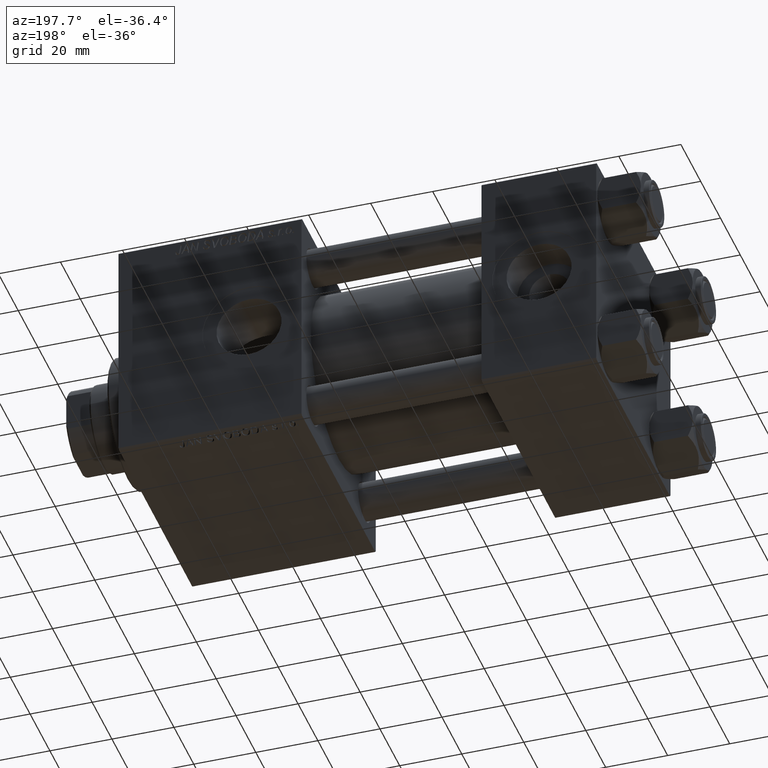
[diagram: clean part render]
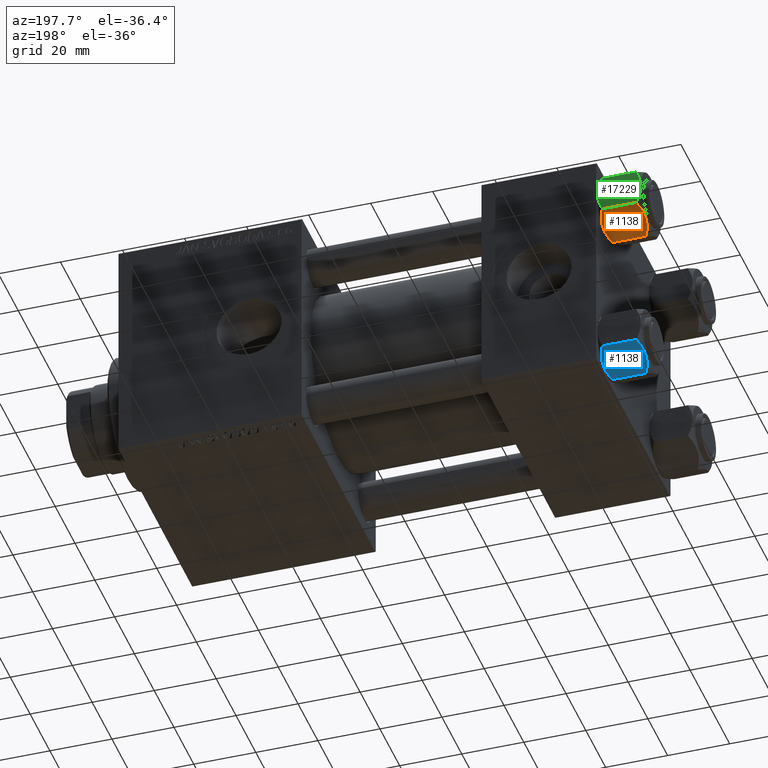
[diagram: same view with three faces highlighted in distinct colors, each labeled with its STEP entity id]
A machine part, auxiliary view with three faces highlighted in distinct colors.
Their STEP definitions:

[orange] entity #1138 — the highlighted planar face has unit normal (0, -0.5, 0.866).
#1138 = ADVANCED_FACE ( 'NONE', ( #26631 ), #42668, .F. ) ;
#2175 = DIRECTION ( 'NONE',  ( 0.8660254037844385966, -0.5000000000000002220, 0.000000000000000000 ) ) ;
#3727 = CARTESIAN_POINT ( 'NONE',  ( -9.227666995912096937, 4.143642311704127223, -13.96005881939308857 ) ) ;
#5527 = CARTESIAN_POINT ( 'NONE',  ( -7.713000053756302599, 6.767122412062954062, -13.84547602999601601 ) ) ;
#6054 = CARTESIAN_POINT ( 'NONE',  ( -8.209704053696567527, 5.906805847843725310, -14.00000000000000533 ) ) ;
#6341 = DIRECTION ( 'NONE',  ( -0.000000000000000000, -0.000000000000000000, 1.000000000000000000 ) ) ;
#6635 = CARTESIAN_POINT ( 'NONE',  ( -11.61999999999999922, 6.288644352490894150E-15, -14.00000000000000000 ) ) ;
#7048 = DIRECTION ( 'NONE',  ( -0.000000000000000000, -0.000000000000000000, 1.000000000000000000 ) ) ;
#7562 = CARTESIAN_POINT ( 'NONE',  ( -8.460569896449618099, 5.472293462311865753, 3.939644352451667145E-15 ) ) ;
#7824 = CARTESIAN_POINT ( 'NONE',  ( -5.809999999999997833, 10.06321519197518022, -1.556784808024814115 ) ) ;
#8681 = CARTESIAN_POINT ( 'NONE',  ( -8.969430103550378064, 4.590921729663314466, -14.00000000000000178 ) ) ;
#9438 = CARTESIAN_POINT ( 'NONE',  ( -11.61999999999999922, 6.270720075510426383E-15, -12.44321519197518811 ) ) ;
#9688 = CARTESIAN_POINT ( 'NONE',  ( -9.974696630283190757, 2.849749030213795109, -13.69973261901325934 ) ) ;
#11703 = CARTESIAN_POINT ( 'NONE',  ( -8.715000000000003411, 5.031607595987592774, 0.000000000000000000 ) ) ;
#12375 = VERTEX_POINT ( 'NONE', #16383 ) ;
#14211 = CARTESIAN_POINT ( 'NONE',  ( -5.809999999999997833, 10.06321519197518022, -12.44321519197518455 ) ) ;
#14761 = CARTESIAN_POINT ( 'NONE',  ( -5.809999999999997833, 10.06321519197518022, -14.00000000000000000 ) ) ;
#14836 = ORIENTED_EDGE ( 'NONE', *, *, #21175, .F. ) ;
#16383 = CARTESIAN_POINT ( 'NONE',  ( -8.715000000000003411, 5.031607595987592774, 0.000000000000000000 ) ) ;
#17114 = EDGE_CURVE ( 'NONE', #43520, #45485, #42566, .T. ) ;
#17125 = VERTEX_POINT ( 'NONE', #25997 ) ;
#19730 = ORIENTED_EDGE ( 'NONE', *, *, #35339, .F. ) ;
#19921 = CARTESIAN_POINT ( 'NONE',  ( -6.731401448974986934, 8.467301068182916168, -0.7141438259524646170 ) ) ;
#20174 = CARTESIAN_POINT ( 'NONE',  ( -7.700834831386344170, 6.788193195293096949, -0.1903979688073401122 ) ) ;
#20667 = AXIS2_PLACEMENT_3D ( 'NONE', #6635, #2175, #30830 ) ;
#21175 = EDGE_CURVE ( 'NONE', #28407, #17125, #42120, .T. ) ;
#21318 = CARTESIAN_POINT ( 'NONE',  ( -6.265018354709776638, 9.275100283241455301, -12.89823354668505218 ) ) ;
#22096 = CARTESIAN_POINT ( 'NONE',  ( -6.733375043383492020, 8.463882702393842550, -13.28854452935654962 ) ) ;
#23023 = VECTOR ( 'NONE', #6341, 1000.000000000000000 ) ;
#23347 = CARTESIAN_POINT ( 'NONE',  ( -8.715000000000003411, 5.031607595987592774, 0.000000000000000000 ) ) ;
#23538 = CARTESIAN_POINT ( 'NONE',  ( -9.716999946243694453, 3.296092779912229265, -0.1545239700039824915 ) ) ;
#24082 = EDGE_CURVE ( 'NONE', #17125, #12375, #37093, .T. ) ;
#24420 = VECTOR ( 'NONE', #7048, 1000.000000000000000 ) ;
#25482 = CARTESIAN_POINT ( 'NONE',  ( -11.16445427487471598, 0.7890283410878030645, -12.89876091710047312 ) ) ;
#25757 = EDGE_CURVE ( 'NONE', #26820, #28407, #26271, .T. ) ;
#25997 = CARTESIAN_POINT ( 'NONE',  ( -5.809999999999997833, 10.06321519197518022, -1.556784808024814115 ) ) ;
#26271 = B_SPLINE_CURVE_WITH_KNOTS ( 'NONE', 3,
 ( #42096, #6054, #5527, #22096, #21318, #14211 ),
 .UNSPECIFIED., .F., .F.,
 ( 4, 2, 4 ),
 ( 0.006022845781655582903, 0.009013049135303629819, 0.01200325248895167847 ),
 .UNSPECIFIED. ) ;
#26631 = FACE_OUTER_BOUND ( 'NONE', #36631, .T. ) ;
#26820 = VERTEX_POINT ( 'NONE', #31260 ) ;
#27306 = CARTESIAN_POINT ( 'NONE',  ( -8.202333004087897450, 5.919572880271055659, -0.03994118060690620559 ) ) ;
#27635 = ORIENTED_EDGE ( 'NONE', *, *, #17114, .T. ) ;
#27756 = CARTESIAN_POINT ( 'NONE',  ( -10.69662495661650148, 1.599332489581337668, -0.7114554706434472742 ) ) ;
#28407 = VERTEX_POINT ( 'NONE', #38568 ) ;
#29903 = B_SPLINE_CURVE_WITH_KNOTS ( 'NONE', 3,
 ( #9438, #25482, #41529, #9688, #41780, #3727, #8681, #47913 ),
 .UNSPECIFIED., .F., .F.,
 ( 4, 2, 2, 4 ),
 ( 2.544312114905218436E-07, 0.003011550106433537755, 0.004517197944044560980, 0.006022845781655582903 ),
 .UNSPECIFIED. ) ;
#30830 = DIRECTION ( 'NONE',  ( 0.5000000000000001110, 0.8660254037844384856, 0.000000000000000000 ) ) ;
#31260 = CARTESIAN_POINT ( 'NONE',  ( -8.715000000000001634, 5.031607595987591885, -14.00000000000000000 ) ) ;
#34461 = ORIENTED_EDGE ( 'NONE', *, *, #25757, .F. ) ;
#35339 = EDGE_CURVE ( 'NONE', #43520, #26820, #29903, .T. ) ;
#35466 = CARTESIAN_POINT ( 'NONE',  ( -6.265545725125282850, 9.274186850887385702, -1.101239082899533539 ) ) ;
#36631 = EDGE_LOOP ( 'NONE', ( #19730, #27635, #40263, #43126, #14836, #34461 ) ) ;
#37093 = B_SPLINE_CURVE_WITH_KNOTS ( 'NONE', 3,
 ( #7824, #35466, #19921, #40166, #20174, #27306, #7562, #23347 ),
 .UNSPECIFIED., .F., .F.,
 ( 4, 2, 2, 4 ),
 ( 2.544312114902182352E-07, 0.003011550106433540791, 0.004517197944044565316, 0.006022845781655589842 ),
 .UNSPECIFIED. ) ;
#37938 = B_SPLINE_CURVE_WITH_KNOTS ( 'NONE', 3,
 ( #11703, #51441, #23538, #27756, #39596, #43799 ),
 .UNSPECIFIED., .F., .F.,
 ( 4, 2, 4 ),
 ( 0.006022845781655589842, 0.009013049135303633289, 0.01200325248895167674 ),
 .UNSPECIFIED. ) ;
#38568 = CARTESIAN_POINT ( 'NONE',  ( -5.809999999999997833, 10.06321519197518022, -12.44321519197518455 ) ) ;
#39596 = CARTESIAN_POINT ( 'NONE',  ( -11.16498164529022219, 0.7881149087337359083, -1.101766453314949379 ) ) ;
#40166 = CARTESIAN_POINT ( 'NONE',  ( -7.455303369716805406, 7.213466161761384221, -0.3002673809867362764 ) ) ;
#40263 = ORIENTED_EDGE ( 'NONE', *, *, #49459, .F. ) ;
#41529 = CARTESIAN_POINT ( 'NONE',  ( -10.69859855102501101, 1.595914123792268491, -13.28585617404753627 ) ) ;
#41780 = CARTESIAN_POINT ( 'NONE',  ( -9.729165168613649328, 3.275021996682086822, -13.80960203119265906 ) ) ;
#42096 = CARTESIAN_POINT ( 'NONE',  ( -8.715000000000001634, 5.031607595987591885, -14.00000000000000000 ) ) ;
#42120 = LINE ( 'NONE', #14761, #23023 ) ;
#42566 = LINE ( 'NONE', #50730, #24420 ) ;
#42668 = PLANE ( 'NONE',  #20667 ) ;
#43126 = ORIENTED_EDGE ( 'NONE', *, *, #24082, .F. ) ;
#43520 = VERTEX_POINT ( 'NONE', #50573 ) ;
#43799 = CARTESIAN_POINT ( 'NONE',  ( -11.61999999999999922, 6.270720075409452187E-15, -1.556784808024810562 ) ) ;
#45485 = VERTEX_POINT ( 'NONE', #51557 ) ;
#47913 = CARTESIAN_POINT ( 'NONE',  ( -8.715000000000001634, 5.031607595987591885, -14.00000000000000000 ) ) ;
#49459 = EDGE_CURVE ( 'NONE', #12375, #45485, #37938, .T. ) ;
#50573 = CARTESIAN_POINT ( 'NONE',  ( -11.61999999999999922, 6.270720075510426383E-15, -12.44321519197518811 ) ) ;
#50730 = CARTESIAN_POINT ( 'NONE',  ( -11.61999999999999922, 6.288644352490894150E-15, -14.00000000000000000 ) ) ;
#51441 = CARTESIAN_POINT ( 'NONE',  ( -9.220295946303428636, 4.156409344131455796, 3.796401669593772542E-15 ) ) ;
#51557 = CARTESIAN_POINT ( 'NONE',  ( -11.61999999999999922, 6.270720075409452187E-15, -1.556784808024810562 ) ) ;

[blue] entity #1138 — the highlighted planar face has unit normal (0, -0.5, 0.866).
#1138 = ADVANCED_FACE ( 'NONE', ( #26631 ), #42668, .F. ) ;
#2175 = DIRECTION ( 'NONE',  ( 0.8660254037844385966, -0.5000000000000002220, 0.000000000000000000 ) ) ;
#3727 = CARTESIAN_POINT ( 'NONE',  ( -9.227666995912096937, 4.143642311704127223, -13.96005881939308857 ) ) ;
#5527 = CARTESIAN_POINT ( 'NONE',  ( -7.713000053756302599, 6.767122412062954062, -13.84547602999601601 ) ) ;
#6054 = CARTESIAN_POINT ( 'NONE',  ( -8.209704053696567527, 5.906805847843725310, -14.00000000000000533 ) ) ;
#6341 = DIRECTION ( 'NONE',  ( -0.000000000000000000, -0.000000000000000000, 1.000000000000000000 ) ) ;
#6635 = CARTESIAN_POINT ( 'NONE',  ( -11.61999999999999922, 6.288644352490894150E-15, -14.00000000000000000 ) ) ;
#7048 = DIRECTION ( 'NONE',  ( -0.000000000000000000, -0.000000000000000000, 1.000000000000000000 ) ) ;
#7562 = CARTESIAN_POINT ( 'NONE',  ( -8.460569896449618099, 5.472293462311865753, 3.939644352451667145E-15 ) ) ;
#7824 = CARTESIAN_POINT ( 'NONE',  ( -5.809999999999997833, 10.06321519197518022, -1.556784808024814115 ) ) ;
#8681 = CARTESIAN_POINT ( 'NONE',  ( -8.969430103550378064, 4.590921729663314466, -14.00000000000000178 ) ) ;
#9438 = CARTESIAN_POINT ( 'NONE',  ( -11.61999999999999922, 6.270720075510426383E-15, -12.44321519197518811 ) ) ;
#9688 = CARTESIAN_POINT ( 'NONE',  ( -9.974696630283190757, 2.849749030213795109, -13.69973261901325934 ) ) ;
#11703 = CARTESIAN_POINT ( 'NONE',  ( -8.715000000000003411, 5.031607595987592774, 0.000000000000000000 ) ) ;
#12375 = VERTEX_POINT ( 'NONE', #16383 ) ;
#14211 = CARTESIAN_POINT ( 'NONE',  ( -5.809999999999997833, 10.06321519197518022, -12.44321519197518455 ) ) ;
#14761 = CARTESIAN_POINT ( 'NONE',  ( -5.809999999999997833, 10.06321519197518022, -14.00000000000000000 ) ) ;
#14836 = ORIENTED_EDGE ( 'NONE', *, *, #21175, .F. ) ;
#16383 = CARTESIAN_POINT ( 'NONE',  ( -8.715000000000003411, 5.031607595987592774, 0.000000000000000000 ) ) ;
#17114 = EDGE_CURVE ( 'NONE', #43520, #45485, #42566, .T. ) ;
#17125 = VERTEX_POINT ( 'NONE', #25997 ) ;
#19730 = ORIENTED_EDGE ( 'NONE', *, *, #35339, .F. ) ;
#19921 = CARTESIAN_POINT ( 'NONE',  ( -6.731401448974986934, 8.467301068182916168, -0.7141438259524646170 ) ) ;
#20174 = CARTESIAN_POINT ( 'NONE',  ( -7.700834831386344170, 6.788193195293096949, -0.1903979688073401122 ) ) ;
#20667 = AXIS2_PLACEMENT_3D ( 'NONE', #6635, #2175, #30830 ) ;
#21175 = EDGE_CURVE ( 'NONE', #28407, #17125, #42120, .T. ) ;
#21318 = CARTESIAN_POINT ( 'NONE',  ( -6.265018354709776638, 9.275100283241455301, -12.89823354668505218 ) ) ;
#22096 = CARTESIAN_POINT ( 'NONE',  ( -6.733375043383492020, 8.463882702393842550, -13.28854452935654962 ) ) ;
#23023 = VECTOR ( 'NONE', #6341, 1000.000000000000000 ) ;
#23347 = CARTESIAN_POINT ( 'NONE',  ( -8.715000000000003411, 5.031607595987592774, 0.000000000000000000 ) ) ;
#23538 = CARTESIAN_POINT ( 'NONE',  ( -9.716999946243694453, 3.296092779912229265, -0.1545239700039824915 ) ) ;
#24082 = EDGE_CURVE ( 'NONE', #17125, #12375, #37093, .T. ) ;
#24420 = VECTOR ( 'NONE', #7048, 1000.000000000000000 ) ;
#25482 = CARTESIAN_POINT ( 'NONE',  ( -11.16445427487471598, 0.7890283410878030645, -12.89876091710047312 ) ) ;
#25757 = EDGE_CURVE ( 'NONE', #26820, #28407, #26271, .T. ) ;
#25997 = CARTESIAN_POINT ( 'NONE',  ( -5.809999999999997833, 10.06321519197518022, -1.556784808024814115 ) ) ;
#26271 = B_SPLINE_CURVE_WITH_KNOTS ( 'NONE', 3,
 ( #42096, #6054, #5527, #22096, #21318, #14211 ),
 .UNSPECIFIED., .F., .F.,
 ( 4, 2, 4 ),
 ( 0.006022845781655582903, 0.009013049135303629819, 0.01200325248895167847 ),
 .UNSPECIFIED. ) ;
#26631 = FACE_OUTER_BOUND ( 'NONE', #36631, .T. ) ;
#26820 = VERTEX_POINT ( 'NONE', #31260 ) ;
#27306 = CARTESIAN_POINT ( 'NONE',  ( -8.202333004087897450, 5.919572880271055659, -0.03994118060690620559 ) ) ;
#27635 = ORIENTED_EDGE ( 'NONE', *, *, #17114, .T. ) ;
#27756 = CARTESIAN_POINT ( 'NONE',  ( -10.69662495661650148, 1.599332489581337668, -0.7114554706434472742 ) ) ;
#28407 = VERTEX_POINT ( 'NONE', #38568 ) ;
#29903 = B_SPLINE_CURVE_WITH_KNOTS ( 'NONE', 3,
 ( #9438, #25482, #41529, #9688, #41780, #3727, #8681, #47913 ),
 .UNSPECIFIED., .F., .F.,
 ( 4, 2, 2, 4 ),
 ( 2.544312114905218436E-07, 0.003011550106433537755, 0.004517197944044560980, 0.006022845781655582903 ),
 .UNSPECIFIED. ) ;
#30830 = DIRECTION ( 'NONE',  ( 0.5000000000000001110, 0.8660254037844384856, 0.000000000000000000 ) ) ;
#31260 = CARTESIAN_POINT ( 'NONE',  ( -8.715000000000001634, 5.031607595987591885, -14.00000000000000000 ) ) ;
#34461 = ORIENTED_EDGE ( 'NONE', *, *, #25757, .F. ) ;
#35339 = EDGE_CURVE ( 'NONE', #43520, #26820, #29903, .T. ) ;
#35466 = CARTESIAN_POINT ( 'NONE',  ( -6.265545725125282850, 9.274186850887385702, -1.101239082899533539 ) ) ;
#36631 = EDGE_LOOP ( 'NONE', ( #19730, #27635, #40263, #43126, #14836, #34461 ) ) ;
#37093 = B_SPLINE_CURVE_WITH_KNOTS ( 'NONE', 3,
 ( #7824, #35466, #19921, #40166, #20174, #27306, #7562, #23347 ),
 .UNSPECIFIED., .F., .F.,
 ( 4, 2, 2, 4 ),
 ( 2.544312114902182352E-07, 0.003011550106433540791, 0.004517197944044565316, 0.006022845781655589842 ),
 .UNSPECIFIED. ) ;
#37938 = B_SPLINE_CURVE_WITH_KNOTS ( 'NONE', 3,
 ( #11703, #51441, #23538, #27756, #39596, #43799 ),
 .UNSPECIFIED., .F., .F.,
 ( 4, 2, 4 ),
 ( 0.006022845781655589842, 0.009013049135303633289, 0.01200325248895167674 ),
 .UNSPECIFIED. ) ;
#38568 = CARTESIAN_POINT ( 'NONE',  ( -5.809999999999997833, 10.06321519197518022, -12.44321519197518455 ) ) ;
#39596 = CARTESIAN_POINT ( 'NONE',  ( -11.16498164529022219, 0.7881149087337359083, -1.101766453314949379 ) ) ;
#40166 = CARTESIAN_POINT ( 'NONE',  ( -7.455303369716805406, 7.213466161761384221, -0.3002673809867362764 ) ) ;
#40263 = ORIENTED_EDGE ( 'NONE', *, *, #49459, .F. ) ;
#41529 = CARTESIAN_POINT ( 'NONE',  ( -10.69859855102501101, 1.595914123792268491, -13.28585617404753627 ) ) ;
#41780 = CARTESIAN_POINT ( 'NONE',  ( -9.729165168613649328, 3.275021996682086822, -13.80960203119265906 ) ) ;
#42096 = CARTESIAN_POINT ( 'NONE',  ( -8.715000000000001634, 5.031607595987591885, -14.00000000000000000 ) ) ;
#42120 = LINE ( 'NONE', #14761, #23023 ) ;
#42566 = LINE ( 'NONE', #50730, #24420 ) ;
#42668 = PLANE ( 'NONE',  #20667 ) ;
#43126 = ORIENTED_EDGE ( 'NONE', *, *, #24082, .F. ) ;
#43520 = VERTEX_POINT ( 'NONE', #50573 ) ;
#43799 = CARTESIAN_POINT ( 'NONE',  ( -11.61999999999999922, 6.270720075409452187E-15, -1.556784808024810562 ) ) ;
#45485 = VERTEX_POINT ( 'NONE', #51557 ) ;
#47913 = CARTESIAN_POINT ( 'NONE',  ( -8.715000000000001634, 5.031607595987591885, -14.00000000000000000 ) ) ;
#49459 = EDGE_CURVE ( 'NONE', #12375, #45485, #37938, .T. ) ;
#50573 = CARTESIAN_POINT ( 'NONE',  ( -11.61999999999999922, 6.270720075510426383E-15, -12.44321519197518811 ) ) ;
#50730 = CARTESIAN_POINT ( 'NONE',  ( -11.61999999999999922, 6.288644352490894150E-15, -14.00000000000000000 ) ) ;
#51441 = CARTESIAN_POINT ( 'NONE',  ( -9.220295946303428636, 4.156409344131455796, 3.796401669593772542E-15 ) ) ;
#51557 = CARTESIAN_POINT ( 'NONE',  ( -11.61999999999999922, 6.270720075409452187E-15, -1.556784808024810562 ) ) ;

[green] entity #17229 — the highlighted planar face has unit normal (0, -1, -0).
#369 = B_SPLINE_CURVE_WITH_KNOTS ( 'NONE', 3,
 ( #29849, #30635, #30107, #34850, #14595, #46680, #10116, #18802 ),
 .UNSPECIFIED., .F., .F.,
 ( 4, 2, 2, 4 ),
 ( 0.01467889604968878811, 0.01619420351931634416, 0.01770951098894390369, 0.02074012592819901579 ),
 .UNSPECIFIED. ) ;
#470 = B_SPLINE_CURVE_WITH_KNOTS ( 'NONE', 3,
 ( #32102, #32612, #4473, #40248, #44453, #3963, #51847, #27649 ),
 .UNSPECIFIED., .F., .F.,
 ( 4, 2, 2, 4 ),
 ( 0.01467889604968878464, 0.01619420351931634069, 0.01770951098894389675, 0.02074012592819901232 ),
 .UNSPECIFIED. ) ;
#1106 = EDGE_LOOP ( 'NONE', ( #31542, #30161, #27842, #49462, #19883, #44589 ) ) ;
#1316 = VERTEX_POINT ( 'NONE', #37368 ) ;
#2032 = LINE ( 'NONE', #38592, #26971 ) ;
#2640 = CARTESIAN_POINT ( 'NONE',  ( 2.508586450168038162, 10.06321519197517844, -13.70242473679676642 ) ) ;
#3925 = CARTESIAN_POINT ( 'NONE',  ( 5.810000000000000497, 10.06321519197518022, -12.44321519197518278 ) ) ;
#3963 = CARTESIAN_POINT ( 'NONE',  ( -2.013954290287967019, 10.06321519197518022, -13.84298883202399821 ) ) ;
#4473 = CARTESIAN_POINT ( 'NONE',  ( -4.900668367960792082, 10.06321519197518199, -12.87844331629022676 ) ) ;
#5171 = DIRECTION ( 'NONE',  ( 0.000000000000000000, -1.000000000000000000, 0.000000000000000000 ) ) ;
#5713 = EDGE_CURVE ( 'NONE', #1316, #51819, #8162, .T. ) ;
#6341 = DIRECTION ( 'NONE',  ( -0.000000000000000000, -0.000000000000000000, 1.000000000000000000 ) ) ;
#6864 = CARTESIAN_POINT ( 'NONE',  ( -4.908816193182376608, 10.06321519197518199, -1.106192904616006167 ) ) ;
#7347 = CARTESIAN_POINT ( 'NONE',  ( 3.960942496020600778, 10.06321519197518022, -13.28842716763895737 ) ) ;
#8162 = B_SPLINE_CURVE_WITH_KNOTS ( 'NONE', 3,
 ( #38676, #51555, #27097, #43130, #19197, #2640, #7347, #34725, #3925 ),
 .UNSPECIFIED., .F., .F.,
 ( 4, 2, 1, 2, 4 ),
 ( 0.02074012592819901232, 0.02149589804477577970, 0.02225167016135254361, 0.02376321439450607489, 0.02678630286081313400 ),
 .UNSPECIFIED. ) ;
#10116 = CARTESIAN_POINT ( 'NONE',  ( 1.020132157807626561, 10.06321519197517844, 1.504330514323637599E-15 ) ) ;
#13404 = B_SPLINE_CURVE_WITH_KNOTS ( 'NONE', 3,
 ( #31058, #19994, #31581, #27638, #51837, #23422, #43677, #6864, #47890 ),
 .UNSPECIFIED., .F., .F.,
 ( 4, 2, 1, 2, 4 ),
 ( 0.02074012592819901579, 0.02149589804477577970, 0.02225167016135254361, 0.02376321439450607489, 0.02678630286081313400 ),
 .UNSPECIFIED. ) ;
#14595 = CARTESIAN_POINT ( 'NONE',  ( 3.474497094393252272, 10.06321519197518022, -0.5726960901042741359 ) ) ;
#14761 = CARTESIAN_POINT ( 'NONE',  ( -5.809999999999997833, 10.06321519197518022, -14.00000000000000000 ) ) ;
#15984 = PLANE ( 'NONE',  #32884 ) ;
#17125 = VERTEX_POINT ( 'NONE', #25997 ) ;
#17229 = ADVANCED_FACE ( 'NONE', ( #52023 ), #15984, .F. ) ;
#18802 = CARTESIAN_POINT ( 'NONE',  ( 0.000000000000000000, 10.06321519197518022, 0.000000000000000000 ) ) ;
#19197 = CARTESIAN_POINT ( 'NONE',  ( 1.772424303831127146, 10.06321519197517667, -13.86611290782775896 ) ) ;
#19883 = ORIENTED_EDGE ( 'NONE', *, *, #31597, .F. ) ;
#19994 = CARTESIAN_POINT ( 'NONE',  ( -0.2543996698847471039, 10.06321519197517844, 1.789568859311522647E-15 ) ) ;
#21175 = EDGE_CURVE ( 'NONE', #28407, #17125, #42120, .T. ) ;
#23023 = VECTOR ( 'NONE', #6341, 1000.000000000000000 ) ;
#23422 = CARTESIAN_POINT ( 'NONE',  ( -2.508586450168038162, 10.06321519197518199, -0.2975752632032285794 ) ) ;
#25997 = CARTESIAN_POINT ( 'NONE',  ( -5.809999999999997833, 10.06321519197518022, -1.556784808024814115 ) ) ;
#26829 = VERTEX_POINT ( 'NONE', #30994 ) ;
#26971 = VECTOR ( 'NONE', #42790, 1000.000000000000000 ) ;
#27097 = CARTESIAN_POINT ( 'NONE',  ( 0.5112014849988876231, 10.06321519197518022, -13.99019602057108536 ) ) ;
#27638 = CARTESIAN_POINT ( 'NONE',  ( -1.018274738099083310, 10.06321519197517667, -0.04822742080070820114 ) ) ;
#27649 = CARTESIAN_POINT ( 'NONE',  ( 0.000000000000000000, 10.06321519197518022, -14.00000000000000000 ) ) ;
#27842 = ORIENTED_EDGE ( 'NONE', *, *, #37866, .F. ) ;
#28407 = VERTEX_POINT ( 'NONE', #38568 ) ;
#28850 = DIRECTION ( 'NONE',  ( 0.000000000000000000, -0.000000000000000000, -1.000000000000000000 ) ) ;
#29849 = CARTESIAN_POINT ( 'NONE',  ( 5.810000000000000497, 10.06321519197518022, -1.556784808024815892 ) ) ;
#29865 = VERTEX_POINT ( 'NONE', #41352 ) ;
#30107 = CARTESIAN_POINT ( 'NONE',  ( 4.900668367960795635, 10.06321519197518199, -1.121556683709773239 ) ) ;
#30161 = ORIENTED_EDGE ( 'NONE', *, *, #21175, .T. ) ;
#30635 = CARTESIAN_POINT ( 'NONE',  ( 5.359707691559672860, 10.06321519197517844, -1.331638653804651629 ) ) ;
#30994 = CARTESIAN_POINT ( 'NONE',  ( 5.810000000000000497, 10.06321519197518022, -1.556784808024815892 ) ) ;
#31058 = CARTESIAN_POINT ( 'NONE',  ( 0.000000000000000000, 10.06321519197518022, 0.000000000000000000 ) ) ;
#31542 = ORIENTED_EDGE ( 'NONE', *, *, #34547, .F. ) ;
#31581 = CARTESIAN_POINT ( 'NONE',  ( -0.5112014849988875120, 10.06321519197518199, -0.009803979428912690947 ) ) ;
#31597 = EDGE_CURVE ( 'NONE', #51819, #26829, #2032, .T. ) ;
#32022 = CARTESIAN_POINT ( 'NONE',  ( -5.809999999999997833, 10.06321519197518022, -14.00000000000000000 ) ) ;
#32102 = CARTESIAN_POINT ( 'NONE',  ( -5.809999999999997833, 10.06321519197518022, -12.44321519197518455 ) ) ;
#32612 = CARTESIAN_POINT ( 'NONE',  ( -5.359707691559671083, 10.06321519197517844, -12.66836134619534526 ) ) ;
#32884 = AXIS2_PLACEMENT_3D ( 'NONE', #32022, #5171, #28850 ) ;
#34547 = EDGE_CURVE ( 'NONE', #28407, #1316, #470, .T. ) ;
#34725 = CARTESIAN_POINT ( 'NONE',  ( 4.908816193182378385, 10.06321519197517667, -12.89380709538398939 ) ) ;
#34850 = CARTESIAN_POINT ( 'NONE',  ( 3.958929922320420403, 10.06321519197517844, -0.7421398502353995230 ) ) ;
#35993 = EDGE_CURVE ( 'NONE', #26829, #29865, #369, .T. ) ;
#37368 = CARTESIAN_POINT ( 'NONE',  ( 0.000000000000000000, 10.06321519197518022, -14.00000000000000000 ) ) ;
#37866 = EDGE_CURVE ( 'NONE', #29865, #17125, #13404, .T. ) ;
#38568 = CARTESIAN_POINT ( 'NONE',  ( -5.809999999999997833, 10.06321519197518022, -12.44321519197518455 ) ) ;
#38592 = CARTESIAN_POINT ( 'NONE',  ( 5.810000000000000497, 10.06321519197518022, -14.00000000000000000 ) ) ;
#38676 = CARTESIAN_POINT ( 'NONE',  ( 0.000000000000000000, 10.06321519197518022, -14.00000000000000000 ) ) ;
#40248 = CARTESIAN_POINT ( 'NONE',  ( -3.958929922320416850, 10.06321519197517844, -13.25786014976459803 ) ) ;
#41352 = CARTESIAN_POINT ( 'NONE',  ( 0.000000000000000000, 10.06321519197518022, 0.000000000000000000 ) ) ;
#41422 = CARTESIAN_POINT ( 'NONE',  ( 5.810000000000000497, 10.06321519197518022, -12.44321519197518278 ) ) ;
#42120 = LINE ( 'NONE', #14761, #23023 ) ;
#42790 = DIRECTION ( 'NONE',  ( -0.000000000000000000, -0.000000000000000000, 1.000000000000000000 ) ) ;
#43130 = CARTESIAN_POINT ( 'NONE',  ( 1.018274738099083976, 10.06321519197517844, -13.95177257919928948 ) ) ;
#43677 = CARTESIAN_POINT ( 'NONE',  ( -3.960942496020600778, 10.06321519197518199, -0.7115728323610410744 ) ) ;
#44453 = CARTESIAN_POINT ( 'NONE',  ( -3.474497094393252716, 10.06321519197518022, -13.42730390989572342 ) ) ;
#44589 = ORIENTED_EDGE ( 'NONE', *, *, #5713, .F. ) ;
#46680 = CARTESIAN_POINT ( 'NONE',  ( 2.013954290287966575, 10.06321519197518022, -0.1570111679759973733 ) ) ;
#47890 = CARTESIAN_POINT ( 'NONE',  ( -5.809999999999997833, 10.06321519197518022, -1.556784808024814115 ) ) ;
#49462 = ORIENTED_EDGE ( 'NONE', *, *, #35993, .F. ) ;
#51555 = CARTESIAN_POINT ( 'NONE',  ( 0.2543996698847478255, 10.06321519197517844, -14.00000000000000000 ) ) ;
#51819 = VERTEX_POINT ( 'NONE', #41422 ) ;
#51837 = CARTESIAN_POINT ( 'NONE',  ( -1.772424303831120929, 10.06321519197518022, -0.1338870921722370433 ) ) ;
#51847 = CARTESIAN_POINT ( 'NONE',  ( -1.020132157807625006, 10.06321519197517844, -13.99999999999999822 ) ) ;
#52023 = FACE_OUTER_BOUND ( 'NONE', #1106, .T. ) ;